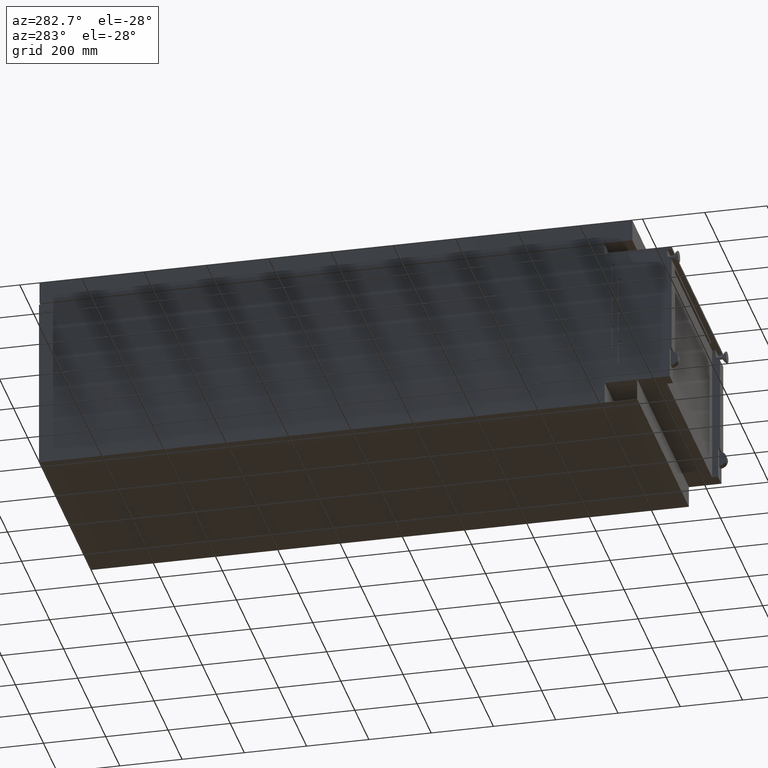
[diagram: clean part render]
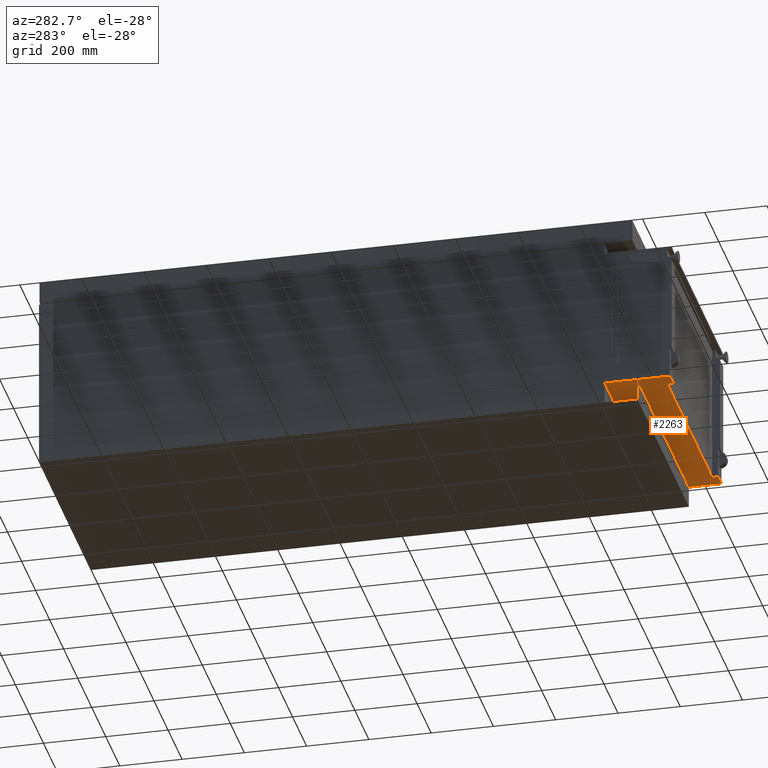
[diagram: same view with one face highlighted and labeled with its STEP entity id]
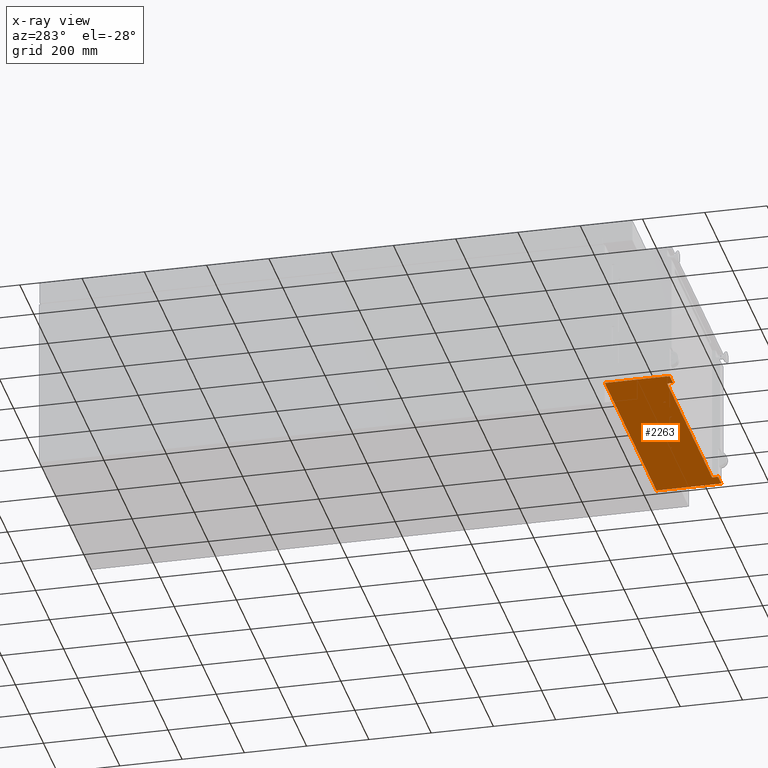
[diagram: x-ray of the same camera — body ghosted, the highlighted face saturated]
A machine part, auxiliary view. The second image highlights one B-rep face of the part: STEP entity #2263.
The next image is the same camera in x-ray: the body ghosted, the highlighted face saturated — about 0% of this face is hidden behind the body in this view.
In plain terms, the highlighted planar face has unit normal (0, 0, 1).
Its self-contained STEP definition (entity closure, byte-faithful):
#163 = VECTOR ( 'NONE', #8289, 1000.000000000000000 ) ;
#167 = PLANE ( 'NONE',  #7855 ) ;
#200 = EDGE_CURVE ( 'NONE', #10347, #1795, #4788, .T. ) ;
#237 = LINE ( 'NONE', #1817, #726 ) ;
#273 = LINE ( 'NONE', #9173, #8520 ) ;
#460 = ORIENTED_EDGE ( 'NONE', *, *, #4294, .T. ) ;
#473 = LINE ( 'NONE', #2103, #6624 ) ;
#561 = CARTESIAN_POINT ( 'NONE',  ( 320.9999999999999400, -1010.050000000000800, -210.3999999999998400 ) ) ;
#726 = VECTOR ( 'NONE', #4251, 1000.000000000000000 ) ;
#806 = CARTESIAN_POINT ( 'NONE',  ( -321.0000000000000600, -1010.050000000000800, -210.3999999999998400 ) ) ;
#899 = DIRECTION ( 'NONE',  ( -1.000000000000000000, 0.0000000000000000000, 0.0000000000000000000 ) ) ;
#930 = VECTOR ( 'NONE', #4994, 1000.000000000000000 ) ;
#952 = VERTEX_POINT ( 'NONE', #806 ) ;
#966 = DIRECTION ( 'NONE',  ( 0.0000000000000000000, 0.0000000000000000000, 1.000000000000000000 ) ) ;
#1262 = LINE ( 'NONE', #8315, #1386 ) ;
#1276 = CARTESIAN_POINT ( 'NONE',  ( -367.8000000000000100, -801.3499999999996800, -210.3999999999998400 ) ) ;
#1386 = VECTOR ( 'NONE', #6717, 1000.000000000000000 ) ;
#1477 = CARTESIAN_POINT ( 'NONE',  ( -321.0000000000000000, -990.8500000000000200, -210.3999999999998400 ) ) ;
#1578 = EDGE_CURVE ( 'NONE', #8076, #8205, #7020, .T. ) ;
#1779 = VECTOR ( 'NONE', #6860, 1000.000000000000000 ) ;
#1795 = VERTEX_POINT ( 'NONE', #2124 ) ;
#1817 = CARTESIAN_POINT ( 'NONE',  ( 368.0000000000000000, -801.3499999999996800, -210.3999999999998400 ) ) ;
#1914 = VERTEX_POINT ( 'NONE', #8613 ) ;
#1923 = LINE ( 'NONE', #6588, #163 ) ;
#1992 = EDGE_CURVE ( 'NONE', #952, #8076, #473, .T. ) ;
#2103 = CARTESIAN_POINT ( 'NONE',  ( -321.0000000000000600, -1010.050000000000800, -210.3999999999998400 ) ) ;
#2113 = ORIENTED_EDGE ( 'NONE', *, *, #1578, .F. ) ;
#2122 = CARTESIAN_POINT ( 'NONE',  ( 368.0000000000000000, -1010.050000000000800, -210.3999999999998400 ) ) ;
#2124 = CARTESIAN_POINT ( 'NONE',  ( 367.7999999999997800, -801.1499999999998600, -210.3999999999998400 ) ) ;
#2241 = VECTOR ( 'NONE', #9240, 1000.000000000000000 ) ;
#2263 = ADVANCED_FACE ( 'NONE', ( #5614 ), #167, .F. ) ;
#2274 = ORIENTED_EDGE ( 'NONE', *, *, #7806, .F. ) ;
#2446 = VERTEX_POINT ( 'NONE', #6971 ) ;
#2456 = CARTESIAN_POINT ( 'NONE',  ( 320.9999999999999400, -1010.050000000000800, -210.3999999999998400 ) ) ;
#2589 = EDGE_LOOP ( 'NONE', ( #2274, #5360, #460, #5129, #2113, #9428, #6187, #5327, #5230, #6242, #4270, #4434 ) ) ;
#2649 = LINE ( 'NONE', #6054, #1779 ) ;
#3257 = LINE ( 'NONE', #2456, #5149 ) ;
#3262 = VERTEX_POINT ( 'NONE', #4309 ) ;
#3264 = CARTESIAN_POINT ( 'NONE',  ( 368.0000000000000000, -1010.050000000000800, -210.3999999999998400 ) ) ;
#3600 = DIRECTION ( 'NONE',  ( 0.0000000000000000000, 1.000000000000000000, 0.0000000000000000000 ) ) ;
#3801 = LINE ( 'NONE', #9071, #9700 ) ;
#4224 = EDGE_CURVE ( 'NONE', #1914, #4413, #9446, .T. ) ;
#4251 = DIRECTION ( 'NONE',  ( -1.000000000000000000, 0.0000000000000000000, 0.0000000000000000000 ) ) ;
#4267 = VECTOR ( 'NONE', #8173, 1000.000000000000000 ) ;
#4270 = ORIENTED_EDGE ( 'NONE', *, *, #9344, .F. ) ;
#4294 = EDGE_CURVE ( 'NONE', #4413, #5599, #3801, .T. ) ;
#4309 = CARTESIAN_POINT ( 'NONE',  ( -367.8000000000000100, -801.1499999999997500, -210.3999999999998400 ) ) ;
#4413 = VERTEX_POINT ( 'NONE', #2122 ) ;
#4434 = ORIENTED_EDGE ( 'NONE', *, *, #200, .F. ) ;
#4787 = VERTEX_POINT ( 'NONE', #4951 ) ;
#4788 = LINE ( 'NONE', #6649, #4267 ) ;
#4951 = CARTESIAN_POINT ( 'NONE',  ( -368.0000000000000000, -1010.050000000000800, -210.3999999999998400 ) ) ;
#4965 = CARTESIAN_POINT ( 'NONE',  ( 368.0000000000000000, -990.8500000000000200, -210.3999999999998400 ) ) ;
#4994 = DIRECTION ( 'NONE',  ( 0.0000000000000000000, -1.000000000000000000, -0.0000000000000000000 ) ) ;
#5017 = VERTEX_POINT ( 'NONE', #1276 ) ;
#5088 = DIRECTION ( 'NONE',  ( 0.0000000000000000000, -1.000000000000000000, -0.0000000000000000000 ) ) ;
#5129 = ORIENTED_EDGE ( 'NONE', *, *, #8810, .F. ) ;
#5149 = VECTOR ( 'NONE', #9757, 1000.000000000000000 ) ;
#5230 = ORIENTED_EDGE ( 'NONE', *, *, #10020, .F. ) ;
#5327 = ORIENTED_EDGE ( 'NONE', *, *, #6611, .F. ) ;
#5360 = ORIENTED_EDGE ( 'NONE', *, *, #4224, .T. ) ;
#5488 = CARTESIAN_POINT ( 'NONE',  ( 367.7999999999997800, -801.3499999999998000, -210.3999999999998400 ) ) ;
#5599 = VERTEX_POINT ( 'NONE', #561 ) ;
#5614 = FACE_OUTER_BOUND ( 'NONE', #2589, .T. ) ;
#5948 = DIRECTION ( 'NONE',  ( -1.000000000000000000, 0.0000000000000000000, 0.0000000000000000000 ) ) ;
#6054 = CARTESIAN_POINT ( 'NONE',  ( 368.0000000000000000, -1010.050000000000800, -210.3999999999998400 ) ) ;
#6187 = ORIENTED_EDGE ( 'NONE', *, *, #8469, .T. ) ;
#6242 = ORIENTED_EDGE ( 'NONE', *, *, #7354, .F. ) ;
#6392 = LINE ( 'NONE', #9098, #2241 ) ;
#6545 = CARTESIAN_POINT ( 'NONE',  ( 320.9999999999999400, -990.8500000000000200, -210.3999999999998400 ) ) ;
#6588 = CARTESIAN_POINT ( 'NONE',  ( 368.0000000000000000, -801.3499999999998000, -210.3999999999998400 ) ) ;
#6611 = EDGE_CURVE ( 'NONE', #2446, #4787, #273, .T. ) ;
#6624 = VECTOR ( 'NONE', #3600, 1000.000000000000000 ) ;
#6649 = CARTESIAN_POINT ( 'NONE',  ( 367.7999999999997800, -1010.050000000000800, -210.3999999999998400 ) ) ;
#6717 = DIRECTION ( 'NONE',  ( -1.000000000000000000, 0.0000000000000000000, 0.0000000000000000000 ) ) ;
#6765 = VECTOR ( 'NONE', #7272, 1000.000000000000000 ) ;
#6860 = DIRECTION ( 'NONE',  ( -1.000000000000000000, 0.0000000000000000000, 0.0000000000000000000 ) ) ;
#6971 = CARTESIAN_POINT ( 'NONE',  ( -368.0000000000000600, -801.3499999999996800, -210.3999999999998400 ) ) ;
#7020 = LINE ( 'NONE', #4965, #6765 ) ;
#7272 = DIRECTION ( 'NONE',  ( 1.000000000000000000, 0.0000000000000000000, 0.0000000000000000000 ) ) ;
#7354 = EDGE_CURVE ( 'NONE', #3262, #5017, #6392, .T. ) ;
#7806 = EDGE_CURVE ( 'NONE', #1914, #10347, #1923, .T. ) ;
#7855 = AXIS2_PLACEMENT_3D ( 'NONE', #3264, #966, #899 ) ;
#8076 = VERTEX_POINT ( 'NONE', #1477 ) ;
#8173 = DIRECTION ( 'NONE',  ( 0.0000000000000000000, 1.000000000000000000, 0.0000000000000000000 ) ) ;
#8205 = VERTEX_POINT ( 'NONE', #6545 ) ;
#8289 = DIRECTION ( 'NONE',  ( -1.000000000000000000, 0.0000000000000000000, 0.0000000000000000000 ) ) ;
#8315 = CARTESIAN_POINT ( 'NONE',  ( 368.0000000000000000, -801.1499999999997500, -210.3999999999998400 ) ) ;
#8469 = EDGE_CURVE ( 'NONE', #952, #4787, #2649, .T. ) ;
#8520 = VECTOR ( 'NONE', #5088, 1000.000000000000000 ) ;
#8613 = CARTESIAN_POINT ( 'NONE',  ( 367.9999999999998300, -801.3499999999998000, -210.3999999999998400 ) ) ;
#8810 = EDGE_CURVE ( 'NONE', #8205, #5599, #3257, .T. ) ;
#9071 = CARTESIAN_POINT ( 'NONE',  ( 368.0000000000000000, -1010.050000000000800, -210.3999999999998400 ) ) ;
#9098 = CARTESIAN_POINT ( 'NONE',  ( -367.8000000000000100, -1010.050000000000800, -210.3999999999998400 ) ) ;
#9173 = CARTESIAN_POINT ( 'NONE',  ( -368.0000000000000000, -1010.050000000000800, -210.3999999999998400 ) ) ;
#9240 = DIRECTION ( 'NONE',  ( 0.0000000000000000000, -1.000000000000000000, 0.0000000000000000000 ) ) ;
#9344 = EDGE_CURVE ( 'NONE', #1795, #3262, #1262, .T. ) ;
#9428 = ORIENTED_EDGE ( 'NONE', *, *, #1992, .F. ) ;
#9446 = LINE ( 'NONE', #9829, #930 ) ;
#9700 = VECTOR ( 'NONE', #5948, 1000.000000000000000 ) ;
#9757 = DIRECTION ( 'NONE',  ( 0.0000000000000000000, -1.000000000000000000, 0.0000000000000000000 ) ) ;
#9829 = CARTESIAN_POINT ( 'NONE',  ( 368.0000000000000000, -1010.050000000000800, -210.3999999999998400 ) ) ;
#10020 = EDGE_CURVE ( 'NONE', #5017, #2446, #237, .T. ) ;
#10347 = VERTEX_POINT ( 'NONE', #5488 ) ;